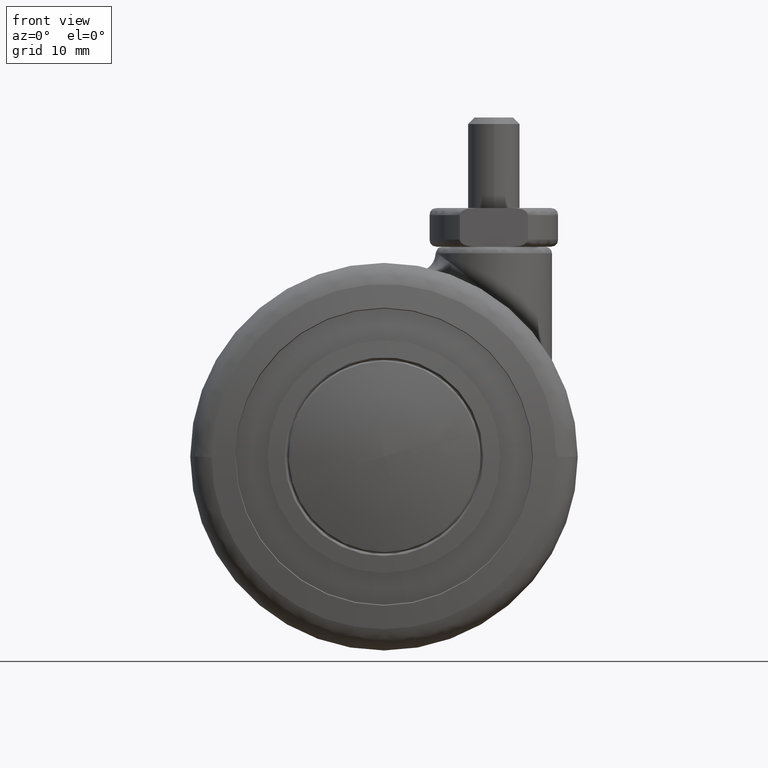
[diagram: clean part render]
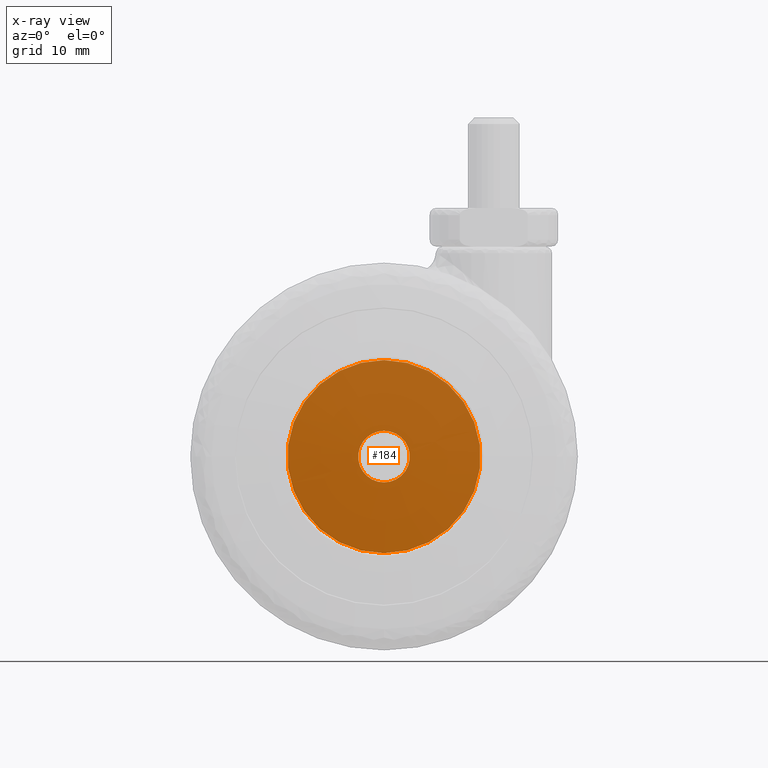
[diagram: x-ray — body ghosted, one internal face saturated and labeled with its STEP entity id]
A machine part, front view, then the same camera in x-ray: the body is ghosted and one INTERNAL B-rep face — a face not visible from any outside direction — is saturated and labeled: STEP entity #184.
In plain terms, the highlighted planar face has unit normal (0, -1, 0).
Its self-contained STEP definition (entity closure, byte-faithful):
#184=ADVANCED_FACE('',(#572,#573),#571,.T.);
#571=PLANE('',#2106);
#572=FACE_OUTER_BOUND('',#2107,.T.);
#573=FACE_BOUND('',#2108,.T.);
#2103=CARTESIAN_POINT('',(-3.10729914878E+01,2.00000000000E+01,3.43850000000E+01));
#2104=DIRECTION('',(0.00000000000E+00,-1.00000000000E+00,-0.00000000000E+00));
#2105=DIRECTION('',(0.00000000000E+00,0.00000000000E+00,-1.00000000000E+00));
#2106=AXIS2_PLACEMENT_3D('',#2103,#2104,#2105);
#2107=EDGE_LOOP('',(#4664,#4665));
#2108=EDGE_LOOP('',(#4666,#4667));
#4664=ORIENTED_EDGE('',*,*,#5341,.T.);
#4665=ORIENTED_EDGE('',*,*,#5342,.T.);
#4666=ORIENTED_EDGE('',*,*,#5343,.F.);
#4667=ORIENTED_EDGE('',*,*,#5344,.F.);
#5341=EDGE_CURVE('',#6392,#6393,#6394,.T.);
#5342=EDGE_CURVE('',#6393,#6392,#6400,.T.);
#5343=EDGE_CURVE('',#6406,#6407,#6408,.T.);
#5344=EDGE_CURVE('',#6407,#6406,#6414,.T.);
#6392=VERTEX_POINT('',#8777);
#6393=VERTEX_POINT('',#8778);
#6394=CIRCLE('',#8782,1.49500000000E+01);
#6400=CIRCLE('',#8786,1.49500000000E+01);
#6406=VERTEX_POINT('',#8787);
#6407=VERTEX_POINT('',#8788);
#6408=CIRCLE('',#8792,4.00000000000E+00);
#6414=CIRCLE('',#8796,4.00000000000E+00);
#8777=CARTESIAN_POINT('',(0.00000000000E+00,2.00000000000E+01,-1.49500000000E+01));
#8778=CARTESIAN_POINT('',(1.77635683940E-15,2.00000000000E+01,1.49500000000E+01));
#8779=CARTESIAN_POINT('',(0.00000000000E+00,2.00000000000E+01,0.00000000000E+00));
#8780=DIRECTION('',(0.00000000000E+00,-1.00000000000E+00,-0.00000000000E+00));
#8781=DIRECTION('',(-1.22460635382E-16,0.00000000000E+00,-1.00000000000E+00));
#8782=AXIS2_PLACEMENT_3D('',#8779,#8780,#8781);
#8783=CARTESIAN_POINT('',(0.00000000000E+00,2.00000000000E+01,0.00000000000E+00));
#8784=DIRECTION('',(0.00000000000E+00,-1.00000000000E+00,-0.00000000000E+00));
#8785=DIRECTION('',(-1.22460635382E-16,0.00000000000E+00,-1.00000000000E+00));
#8786=AXIS2_PLACEMENT_3D('',#8783,#8784,#8785);
#8787=CARTESIAN_POINT('',(4.44089209850E-16,2.00000000000E+01,4.00000000000E+00));
#8788=CARTESIAN_POINT('',(0.00000000000E+00,2.00000000000E+01,-4.00000000000E+00));
#8789=CARTESIAN_POINT('',(0.00000000000E+00,2.00000000000E+01,0.00000000000E+00));
#8790=DIRECTION('',(0.00000000000E+00,-1.00000000000E+00,-0.00000000000E+00));
#8791=DIRECTION('',(-1.22460635382E-16,0.00000000000E+00,-1.00000000000E+00));
#8792=AXIS2_PLACEMENT_3D('',#8789,#8790,#8791);
#8793=CARTESIAN_POINT('',(0.00000000000E+00,2.00000000000E+01,0.00000000000E+00));
#8794=DIRECTION('',(0.00000000000E+00,-1.00000000000E+00,-0.00000000000E+00));
#8795=DIRECTION('',(-1.22460635382E-16,0.00000000000E+00,-1.00000000000E+00));
#8796=AXIS2_PLACEMENT_3D('',#8793,#8794,#8795);